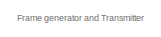
[diagram: root canvas - part 1/5, top left region]
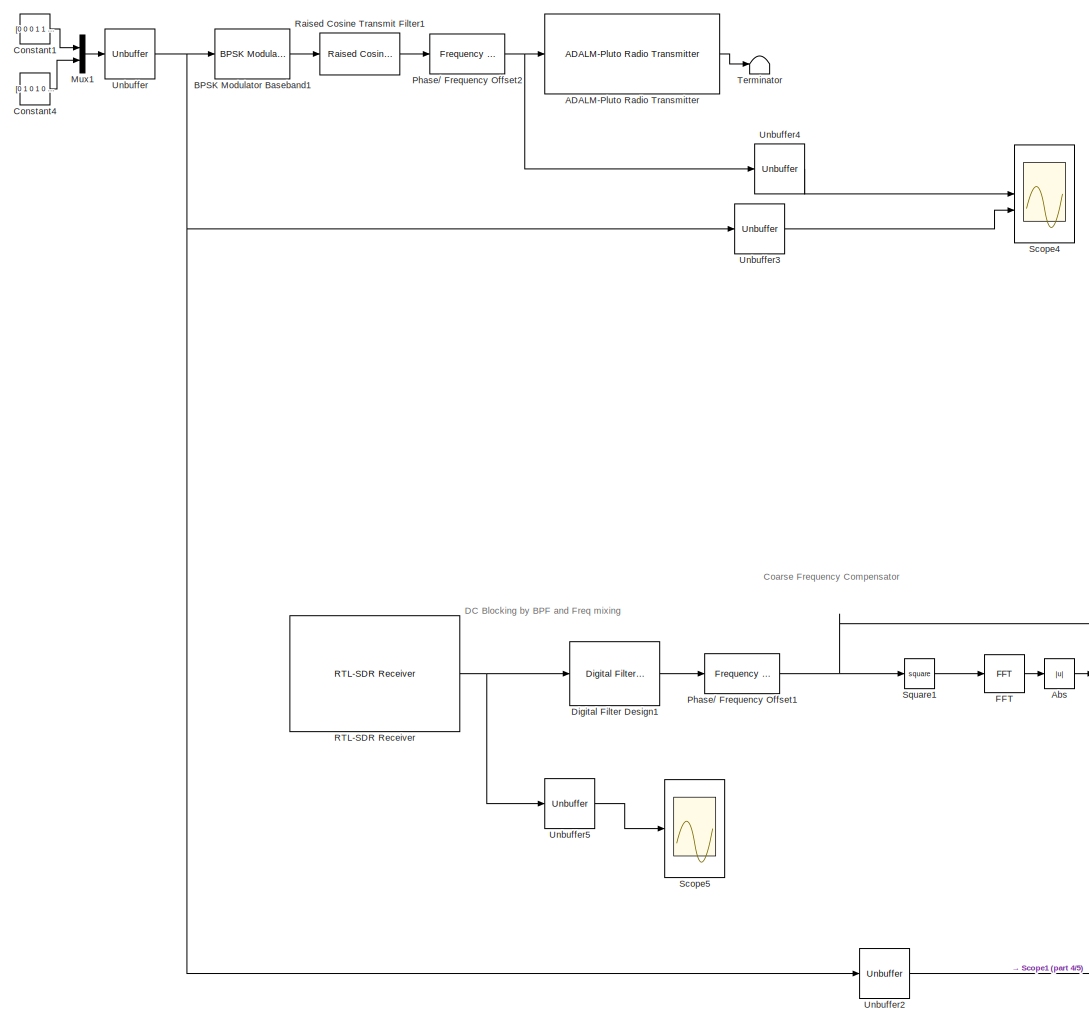
[diagram: root canvas - part 2/5, left side, full height]
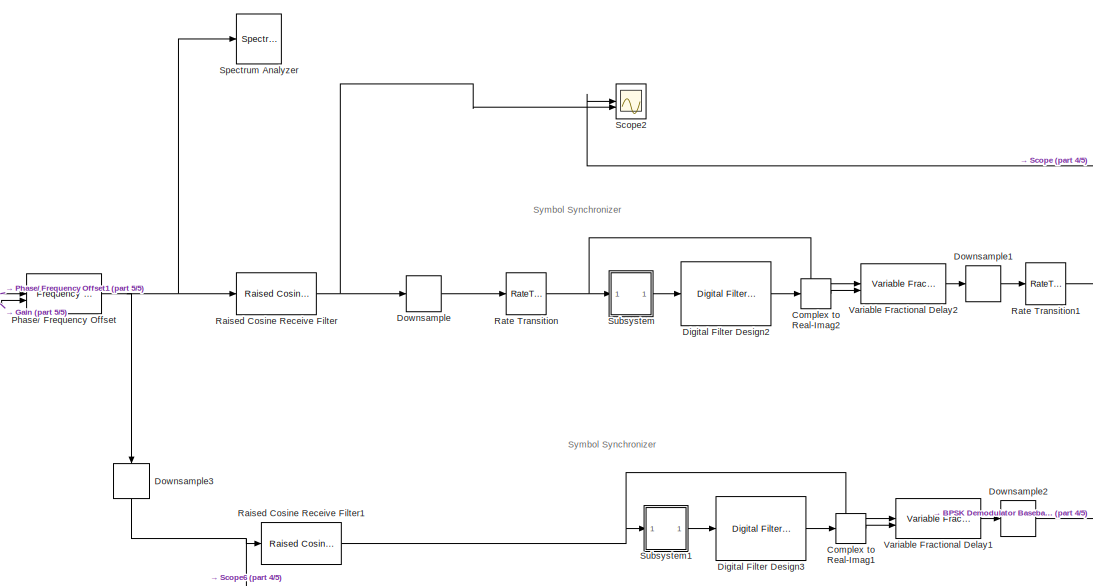
[diagram: root canvas - part 3/5, central region]
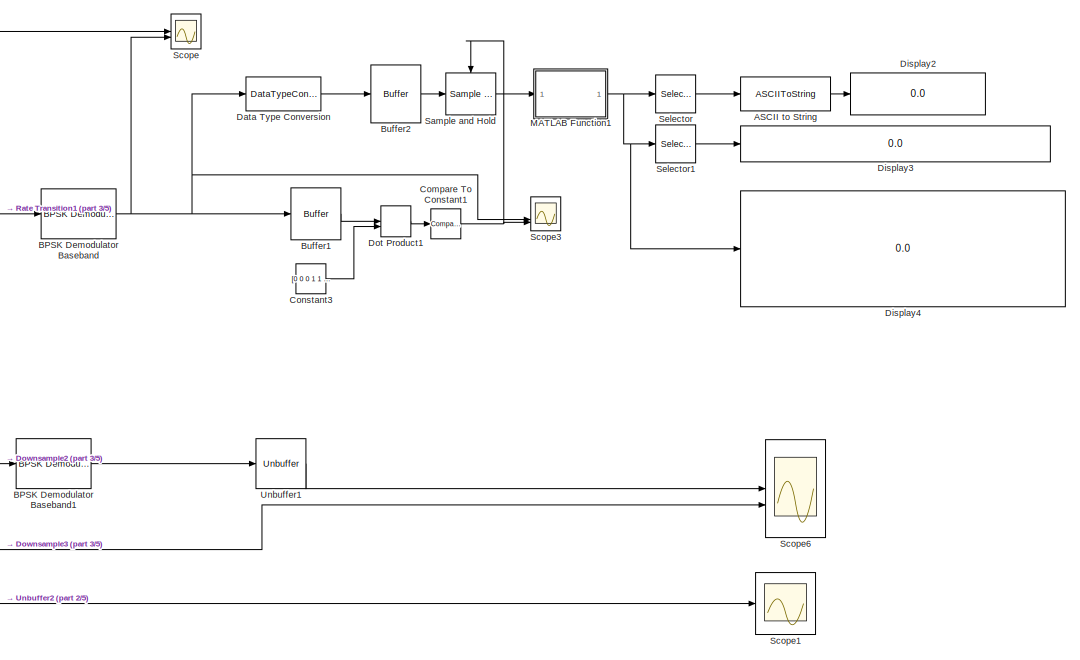
[diagram: root canvas - part 4/5, bottom right region]
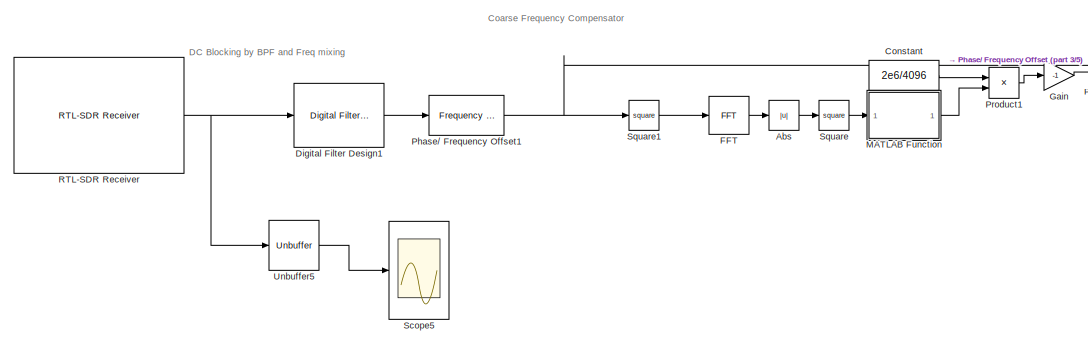
[diagram: root canvas - part 5/5, bottom left region]
MODEL slx_43af48379f22
KIND model
CONFIG AbsTol = auto
CONFIG EnableMultiTasking = off
CONFIG FixedStep = auto
CONFIG MaxStep = auto
CONFIG MinStep = auto
CONFIG RelTol = 1e-3
CONFIG SampleTimeConstraint = Unconstrained
CONFIG SolverName = VariableStepAuto
CONFIG StartTime = 0.0
CONFIG StopTime = 0.1
BLOCK [Reference] ADALM-Pluto Radio Transmitter  REF=plutoradiolib/ADALM-Pluto Radio
Transmitter
  SourceBlock = plutoradiolib/ADALM-Pluto Radio\nTransmitter
  SourceType = comm.SDRTxPluto
BLOCK [ASCIIToString] ASCII to String
  Commented = on
BLOCK [Abs] Abs
  SaturateOnIntegerOverflow = off
BLOCK [Reference] BPSK Demodulator Baseband  REF=commdigbbndpm3/BPSK
Demodulator
Baseband
  Commented = on
  SourceBlock = commdigbbndpm3/BPSK\nDemodulator\nBaseband
  SourceType = BPSK Demodulator Baseband
BLOCK [Reference] BPSK Demodulator Baseband1  REF=commdigbbndpm3/BPSK
Demodulator
Baseband
  SourceBlock = commdigbbndpm3/BPSK\nDemodulator\nBaseband
  SourceType = BPSK Demodulator Baseband
BLOCK [Reference] BPSK Modulator Baseband1  REF=commdigbbndpm3/BPSK
Modulator
Baseband
  SourceBlock = commdigbbndpm3/BPSK\nModulator\nBaseband
  SourceType = BPSK Modulator Baseband
BLOCK [Buffer] Buffer1
  Commented = on
  N = 32
  OutputFrames = off
  V = 31
BLOCK [Buffer] Buffer2
  Commented = on
  N = 160
  OutputFrames = off
  V = 159
BLOCK [Reference] Compare To Constant1  REF=simulink/Logic and Bit
Operations/Compare
To Constant
  Commented = on
  SourceBlock = simulink/Logic and Bit\nOperations/Compare\nTo Constant
  SourceType = Compare To Constant
BLOCK [ComplexToRealImag] Complex to Real-Imag1
  Output = Real
BLOCK [ComplexToRealImag] Complex to Real-Imag2
  Commented = on
  Output = Real
BLOCK [Constant] Constant
  Value = 2e6/4096
BLOCK [Constant] Constant1
  OutDataTypeStr = double
  SampleTime = 128/100e3
  Value = [0 0 0 1 1 0 1 0 1 1 0 0 1 1 1 1 1 1 1 1 1 1 0 0 0 0 0 1 1 1 0 1].'
  VectorParams1D = off
BLOCK [Constant] Constant3
  Commented = on
  OutDataTypeStr = double
  SampleTime = 1/10e6
  Value = [0 0 0 1 1 0 1 0 1 1 0 0 1 1 1 1 1 1 1 1 1 1 0 0 0 0 0 1 1 1 0 1].'
  VectorParams1D = off
BLOCK [Constant] Constant4
  OutDataTypeStr = double
  SampleTime = 128/100e3
  Value = [0 1 0 1 0 0 1 0 0 1 0 0 1 0 0 1 0 1 0 1 0 0 1 1 0 1 0 0 1 0 0 0 0 1 0 0 1 0 0 1 0 0 1 1 1 0 0 1 0 0 1 1 0 0 0 1 0 0 1 1 0 0 0 1 0 0 1 1 0 0 1 0 0 0 1 1 0 0 0 0 0 0 1 1 0 0 0 0 0 0 1 1 0 1 0 0].'
  VectorParams1D = off
BLOCK [DataTypeConversion] Data Type Conversion
  Commented = on
  OutDataTypeStr = uint8
  RndMeth = Floor
  SaturateOnIntegerOverflow = off
BLOCK [Reference] Digital Filter Design1  REF=dspfdesign/Digital
Filter Design
  SourceBlock = dspfdesign/Digital\nFilter Design
  SourceType = Digital Filter Design
  UserDataPersistent = on
BLOCK [Reference] Digital Filter Design2  REF=dspfdesign/Digital
Filter Design
  Commented = on
  SourceBlock = dspfdesign/Digital\nFilter Design
  SourceType = Digital Filter Design
  UserDataPersistent = on
BLOCK [Reference] Digital Filter Design3  REF=dspfdesign/Digital
Filter Design
  SourceBlock = dspfdesign/Digital\nFilter Design
  SourceType = Digital Filter Design
  UserDataPersistent = on
BLOCK [Display] Display2
  Commented = on
  Decimation = 1
BLOCK [Display] Display3
  Commented = on
  Decimation = 1
  Format = hex (Stored Integer)
BLOCK [Display] Display4
  Commented = on
  Decimation = 1
  Format = hex (Stored Integer)
BLOCK [DotProduct] Dot Product1
  Commented = on
  OutDataTypeStr = Inherit: Inherit via internal rule
BLOCK [DownSample] Downsample
  AllowArbitraryFixedInput = on
  Commented = on
  InputProcessing = Elements as channels (sample based)
  N = 100
  RateOptions = Allow multirate processing
BLOCK [DownSample] Downsample1
  AllowArbitraryFixedInput = on
  Commented = on
  InputProcessing = Elements as channels (sample based)
  RateOptions = Allow multirate processing
BLOCK [DownSample] Downsample2
  AllowArbitraryFixedInput = on
  RateOptions = Allow multirate processing
BLOCK [DownSample] Downsample3
  AllowArbitraryFixedInput = on
  Commented = through
  InputProcessing = Elements as channels (sample based)
  N = 100
  NameLocation = left
  RateOptions = Allow multirate processing
BLOCK [Reference] FFT  REF=dspxfrm3/FFT
  SourceBlock = dspxfrm3/FFT
  SourceType = FFT
BLOCK [Gain] Gain
  Gain = -1
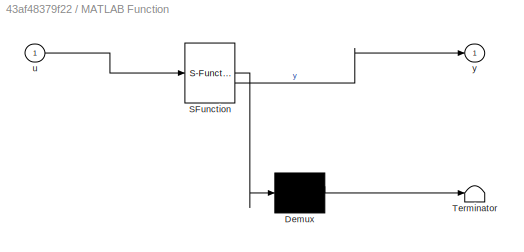
BLOCK [SubSystem] MATLAB Function
  ErrorFcn = Stateflow.Translate.translate
  PermitHierarchicalResolution = ExplicitOnly
  SFBlockType = MATLAB Function
  TreatAsAtomicUnit = on
BLOCK [Demux] MATLAB Function/ Demux 
  Outputs = 1
BLOCK [S-Function] MATLAB Function/ SFunction 
  EnableBusSupport = on
  FunctionName = sf_sfun
  PortCounts = [1 2]
  SFcnIsStateOwnerBlock = off
  SFunctionDeploymentMode = off
  Tag = Stateflow S-Function 2
BLOCK [Terminator] MATLAB Function/ Terminator 
BLOCK [Inport] MATLAB Function/u
BLOCK [Outport] MATLAB Function/y
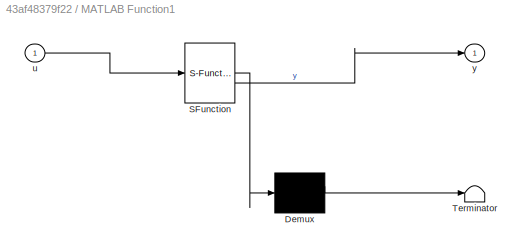
BLOCK [SubSystem] MATLAB Function1
  Commented = on
  ErrorFcn = Stateflow.Translate.translate
  PermitHierarchicalResolution = ExplicitOnly
  SFBlockType = MATLAB Function
  TreatAsAtomicUnit = on
BLOCK [Demux] MATLAB Function1/ Demux 
  Outputs = 1
BLOCK [S-Function] MATLAB Function1/ SFunction 
  EnableBusSupport = on
  FunctionName = sf_sfun
  PortCounts = [1 2]
  SFcnIsStateOwnerBlock = off
  SFunctionDeploymentMode = off
  Tag = Stateflow S-Function 1
BLOCK [Terminator] MATLAB Function1/ Terminator 
BLOCK [Inport] MATLAB Function1/u
BLOCK [Outport] MATLAB Function1/y
BLOCK [Mux] Mux1
  DisplayOption = bar
  Inputs = 2
BLOCK [Reference] Phase// Frequency Offset  REF=commrflib2/Phase//
Frequency
Offset
  SourceBlock = commrflib2/Phase//\nFrequency\nOffset
  SourceType = Phase/Frequency Offset
BLOCK [Reference] Phase// Frequency Offset1  REF=commrflib2/Phase//
Frequency
Offset
  SourceBlock = commrflib2/Phase//\nFrequency\nOffset
  SourceType = Phase/Frequency Offset
BLOCK [Reference] Phase// Frequency Offset2  REF=commrflib2/Phase//
Frequency
Offset
  Commented = through
  SourceBlock = commrflib2/Phase//\nFrequency\nOffset
  SourceType = Phase/Frequency Offset
BLOCK [Product] Product1
BLOCK [Reference] RTL-SDR Receiver  REF=sdrrlib/RTL-SDR
Receiver
  SourceBlock = sdrrlib/RTL-SDR\nReceiver
  SourceType = RTL-SDR Receiver
BLOCK [Reference] Raised Cosine Receive Filter  REF=commfilt2/Raised Cosine
Receive Filter
  Commented = on
  SourceBlock = commfilt2/Raised Cosine\nReceive Filter
  SourceType = Raised Cosine Receive Filter
BLOCK [Reference] Raised Cosine Receive Filter1  REF=commfilt2/Raised Cosine
Receive Filter
  SourceBlock = commfilt2/Raised Cosine\nReceive Filter
  SourceType = Raised Cosine Receive Filter
BLOCK [Reference] Raised Cosine Transmit Filter1  REF=commfilt2/Raised Cosine
Transmit Filter
  SourceBlock = commfilt2/Raised Cosine\nTransmit Filter
  SourceType = Raised Cosine Transmit Filter
BLOCK [RateTransition] Rate Transition
  Commented = on
  OutPortSampleTime = 1/2e3
BLOCK [RateTransition] Rate Transition1
  Commented = on
  OutPortSampleTime = 1/1e3
BLOCK [Reference] Sample and Hold  REF=dspsigops/Sample
and Hold
  Commented = on
  SourceBlock = dspsigops/Sample\nand Hold
  SourceType = Sample and Hold
BLOCK [Scope] Scope
  Commented = on
  Floating = off
  NumInputPorts = 2
  ScopeSpecificationString = Simulink.scopes.TimeScopeBlockCfg('CurrentConfiguration', extmgr.ConfigurationSet(extmgr.Configuration('Core','General UI',true),extmgr.Configuration('Core','Source UI',true),extmgr.Configuration('Sources','WiredSimulink',true,'DataLoggingVariableName','ScopeData1'),extmgr.Configuration('Visuals','Time Domain',true,'SerializedDisplays',{struct('MinYLimReal','-1.00000','MaxYLimReal','1.00000','YLab...<+2815ch>
BLOCK [Scope] Scope1
  Floating = off
  NumInputPorts = 1
  ScopeSpecificationString = Simulink.scopes.TimeScopeBlockCfg('CurrentConfiguration', extmgr.ConfigurationSet(extmgr.Configuration('Core','General UI',true),extmgr.Configuration('Core','Source UI',true),extmgr.Configuration('Sources','WiredSimulink',true,'DataLoggingVariableName','ScopeData2'),extmgr.Configuration('Visuals','Time Domain',true,'SerializedDisplays',{struct('MinYLimReal','-0.42774','MaxYLimReal','0.42142','YLab...<+3031ch>
BLOCK [Scope] Scope2
  Commented = on
  Floating = off
  NumInputPorts = 2
  ScopeSpecificationString = Simulink.scopes.TimeScopeBlockCfg('CurrentConfiguration', extmgr.ConfigurationSet(extmgr.Configuration('Core','General UI',true),extmgr.Configuration('Core','Source UI',true),extmgr.Configuration('Sources','WiredSimulink',true,'DataLoggingVariableName','ScopeData3'),extmgr.Configuration('Visuals','Time Domain',true,'SerializedDisplays',{struct('MinYLimReal','-2.64227','MaxYLimReal','2.57808','YLab...<+2577ch>
BLOCK [Scope] Scope3
  Commented = on
  Floating = off
  NumInputPorts = 3
  ScopeSpecificationString = Simulink.scopes.TimeScopeBlockCfg('CurrentConfiguration', extmgr.ConfigurationSet(extmgr.Configuration('Core','General UI',true),extmgr.Configuration('Core','Source UI',true),extmgr.Configuration('Sources','WiredSimulink',true),extmgr.Configuration('Visuals','Time Domain',true,'SerializedDisplays',{struct('MinYLimReal','-1.00000','MaxYLimReal','1.00000','YLabelReal','','MinYLimMag','0.00000','MaxY...<+3071ch>
BLOCK [Scope] Scope4
  Floating = off
  NumInputPorts = 2
  ScopeSpecificationString = Simulink.scopes.TimeScopeBlockCfg('CurrentConfiguration', extmgr.ConfigurationSet(extmgr.Configuration('Core','General UI',true),extmgr.Configuration('Core','Source UI',true),extmgr.Configuration('Sources','WiredSimulink',true,'DataLoggingVariableName','ScopeData1'),extmgr.Configuration('Visuals','Time Domain',true,'SerializedDisplays',{struct('MinYLimReal','-0.54316','MaxYLimReal','0.56266','YLab...<+2302ch>
BLOCK [Scope] Scope5
  Floating = off
  NumInputPorts = 1
  ScopeSpecificationString = Simulink.scopes.TimeScopeBlockCfg('CurrentConfiguration', extmgr.ConfigurationSet(extmgr.Configuration('Core','General UI',true),extmgr.Configuration('Core','Source UI',true),extmgr.Configuration('Sources','WiredSimulink',true,'DataLoggingVariableName','ScopeData2'),extmgr.Configuration('Visuals','Time Domain',true,'SerializedDisplays',{struct('MinYLimReal','-0.18359','MaxYLimReal','0.16797','YLab...<+2290ch>
BLOCK [Scope] Scope6
  Floating = off
  NumInputPorts = 2
  ScopeSpecificationString = Simulink.scopes.TimeScopeBlockCfg('CurrentConfiguration', extmgr.ConfigurationSet(extmgr.Configuration('Core','General UI',true),extmgr.Configuration('Core','Source UI',true),extmgr.Configuration('Sources','WiredSimulink',true,'DataLoggingVariableName','ScopeData1'),extmgr.Configuration('Visuals','Time Domain',true,'SerializedDisplays',{struct('MinYLimReal','-0.54316','MaxYLimReal','0.56266','YLab...<+2302ch>
BLOCK [Selector] Selector
  Commented = on
  IndexOptions = Index vector (dialog),Index vector (dialog)
  Indices = [1: 12],1
  InputPortWidth = 3
  NumberOfDimensions = 2
  OutputSizes = 1,1
BLOCK [Selector] Selector1
  Commented = on
  IndexOptions = Index vector (dialog),Index vector (dialog)
  Indices = [13:16],1
  InputPortWidth = 3
  NumberOfDimensions = 2
  OutputSizes = 1,1
BLOCK [SpectrumAnalyzer] Spectrum Analyzer
  GraphicalSettings = {"GraphicalSettings":{"Style":{"BackgroundColor":[0.12941176470588237,0.12941176470588237,0.12941176470588237],"AxesColor":[0.07058823529411765,0.07058823529411765,0.07058823529411765],"LabelsColor":[0.8509803921568627,0.8509803921568627,0.8509803921568627],"PreserveColors":false,"Visible":[true],"LineStyle":["-"],"LineColor":[[1,0.9098039215686274,0.39215686274509803]],"LineWidth":[1.5],"Marker":...<+945ch>
  ScopeFrameLocation = window
  SelectedToolstripTab = spectrumAnalyzerToolstrip.measurementsTab
  Span = 2000000
  StartFrequency = -1000000
  StopFrequency = 1000000
  WasSavedAsWebScope = on
  WindowPosition = [0.000000,36.000000,2048.000000,1080.000000,]
  YLimits = [-81.07364636,-27.60033048]
BLOCK [Math] Square
  Commented = through
  Operator = square
BLOCK [Math] Square1
  Operator = square
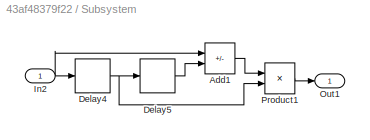
BLOCK [SubSystem] Subsystem
  Commented = on
BLOCK [Sum] Subsystem/Add1
  IconShape = rectangular
  Inputs = -+
BLOCK [Delay] Subsystem/Delay4
  DelayLength = 1
  InitialCondition = 0
  InputPortMap = u0
BLOCK [Delay] Subsystem/Delay5
  DelayLength = 1
  InitialCondition = 0
  InputPortMap = u0
BLOCK [Inport] Subsystem/In2
BLOCK [Outport] Subsystem/Out1
BLOCK [Product] Subsystem/Product1
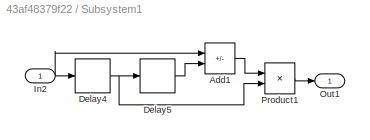
BLOCK [SubSystem] Subsystem1
BLOCK [Sum] Subsystem1/Add1
  IconShape = rectangular
  Inputs = -+
BLOCK [Delay] Subsystem1/Delay4
  DelayLength = 1
  InitialCondition = 0
  InputPortMap = u0
  InputProcessing = Columns as channels (frame based)
BLOCK [Delay] Subsystem1/Delay5
  DelayLength = 1
  InitialCondition = 0
  InputPortMap = u0
  InputProcessing = Columns as channels (frame based)
BLOCK [Inport] Subsystem1/In2
BLOCK [Outport] Subsystem1/Out1
BLOCK [Product] Subsystem1/Product1
BLOCK [Terminator] Terminator
BLOCK [Unbuffer] Unbuffer
  Commented = through
BLOCK [Unbuffer] Unbuffer1
BLOCK [Unbuffer] Unbuffer2
BLOCK [Unbuffer] Unbuffer3
BLOCK [Unbuffer] Unbuffer4
BLOCK [Unbuffer] Unbuffer5
BLOCK [Reference] Variable Fractional Delay1  REF=dspsigops/Variable
Fractional Delay
  SourceBlock = dspsigops/Variable\nFractional Delay
  SourceType = Variable Fractional Delay
  UserDataPersistent = on
BLOCK [Reference] Variable Fractional Delay2  REF=dspsigops/Variable
Fractional Delay
  Commented = on
  SourceBlock = dspsigops/Variable\nFractional Delay
  SourceType = Variable Fractional Delay
  UserDataPersistent = on
ANNOTATION (root): Coarse Frequency Compensator
ANNOTATION (root): DC Blocking by BPF and Freq mixing
ANNOTATION (root): Frame generator and Transmitter
ANNOTATION (root): Symbol Synchronizer
LINE ADALM-Pluto Radio Transmitter:1 -> Terminator:1
LINE ASCII to String:1 -> Display2:1
LINE Abs:1 -> Square:1
LINE BPSK Demodulator Baseband1:1 -> Unbuffer1:1
NET BPSK Demodulator Baseband:1 -> Buffer1:1, Data Type Conversion:1, Scope3:2, Scope:2
LINE BPSK Modulator Baseband1:1 -> Raised Cosine Transmit Filter1:1
LINE Buffer1:1 -> Dot Product1:1
LINE Buffer2:1 -> Sample and Hold:1
NET Compare To Constant1:1 -> Sample and Hold:trigger, Scope3:3
LINE Complex to Real-Imag1:1 -> Variable Fractional Delay1:2
LINE Complex to Real-Imag2:1 -> Variable Fractional Delay2:2
LINE Constant1:1 -> Mux1:1
LINE Constant3:1 -> Dot Product1:2
LINE Constant4:1 -> Mux1:2
LINE Constant:1 -> Product1:1
LINE Data Type Conversion:1 -> Buffer2:1
LINE Digital Filter Design1:1 -> Phase// Frequency Offset1:1
LINE Digital Filter Design2:1 -> Complex to Real-Imag2:1
LINE Digital Filter Design3:1 -> Complex to Real-Imag1:1
LINE Dot Product1:1 -> Compare To Constant1:1
LINE Downsample1:1 -> Rate Transition1:1
LINE Downsample2:1 -> BPSK Demodulator Baseband1:1
NET Downsample3:1 -> Raised Cosine Receive Filter1:1, Scope6:2
LINE Downsample:1 -> Rate Transition:1
LINE FFT:1 -> Abs:1
LINE Gain:1 -> Phase// Frequency Offset:2
NET MATLAB Function1:1 -> Display4:1, Selector1:1, Selector:1
LINE MATLAB Function:1 -> Product1:2
LINE Mux1:1 -> Unbuffer:1
NET Phase// Frequency Offset1:1 -> Phase// Frequency Offset:1, Square1:1
NET Phase// Frequency Offset2:1 -> ADALM-Pluto Radio Transmitter:1, Unbuffer4:1
NET Phase// Frequency Offset:1 -> Downsample3:1, Raised Cosine Receive Filter:1, Spectrum Analyzer:1
LINE Product1:1 -> Gain:1
NET RTL-SDR Receiver:1 -> Digital Filter Design1:1, Unbuffer5:1
NET Raised Cosine Receive Filter1:1 -> Subsystem1:1, Variable Fractional Delay1:1
NET Raised Cosine Receive Filter:1 -> Downsample:1, Scope2:2
LINE Raised Cosine Transmit Filter1:1 -> Phase// Frequency Offset2:1
NET Rate Transition1:1 -> BPSK Demodulator Baseband:1, Scope2:1, Scope:1
NET Rate Transition:1 -> Subsystem:1, Variable Fractional Delay2:1
LINE Sample and Hold:1 -> MATLAB Function1:1
LINE Selector1:1 -> Display3:1
LINE Selector:1 -> ASCII to String:1
LINE Square1:1 -> FFT:1
LINE Square:1 -> MATLAB Function:1
LINE Subsystem/Add1:1 -> Subsystem/Product1:1
NET Subsystem/Delay4:1 -> Subsystem/Delay5:1, Subsystem/Product1:2
LINE Subsystem/Delay5:1 -> Subsystem/Add1:2
NET Subsystem/In2:1 -> Subsystem/Add1:1, Subsystem/Delay4:1
LINE Subsystem/Product1:1 -> Subsystem/Out1:1
LINE Subsystem1/Add1:1 -> Subsystem1/Product1:1
NET Subsystem1/Delay4:1 -> Subsystem1/Delay5:1, Subsystem1/Product1:2
LINE Subsystem1/Delay5:1 -> Subsystem1/Add1:2
NET Subsystem1/In2:1 -> Subsystem1/Add1:1, Subsystem1/Delay4:1
LINE Subsystem1/Product1:1 -> Subsystem1/Out1:1
LINE Subsystem1:1 -> Digital Filter Design3:1
LINE Subsystem:1 -> Digital Filter Design2:1
LINE Unbuffer1:1 -> Scope6:1
LINE Unbuffer2:1 -> Scope1:1
LINE Unbuffer3:1 -> Scope4:2
LINE Unbuffer4:1 -> Scope4:1
LINE Unbuffer5:1 -> Scope5:1
NET Unbuffer:1 -> BPSK Modulator Baseband1:1, Unbuffer2:1, Unbuffer3:1
LINE Variable Fractional Delay1:1 -> Downsample2:1
LINE Variable Fractional Delay2:1 -> Downsample1:1
note: NET lines group one-source signal fan-out (src -> all destinations, sorted); 1:1 wires keep LINE
CHART MATLAB Function states=1 transitions=1
  STATE_LABEL 'eML_blk_kernel()'
  STATE_LABEL 'SCRIPT:\nfunction y = fcn(u)\n\n[M,y] = max(u);\n\n'
CHART MATLAB Function1 states=1 transitions=1
  STATE_LABEL 'eML_blk_kernel()'
  STATE_LABEL "SCRIPT:\nfunction y = fcn(u)\nbyte_matrix=reshape(u,8,[])';\ny =bi2de(byte_matrix, 'left-msb');\n"
CHART  states=0 transitions=0
CHART  states=0 transitions=0
